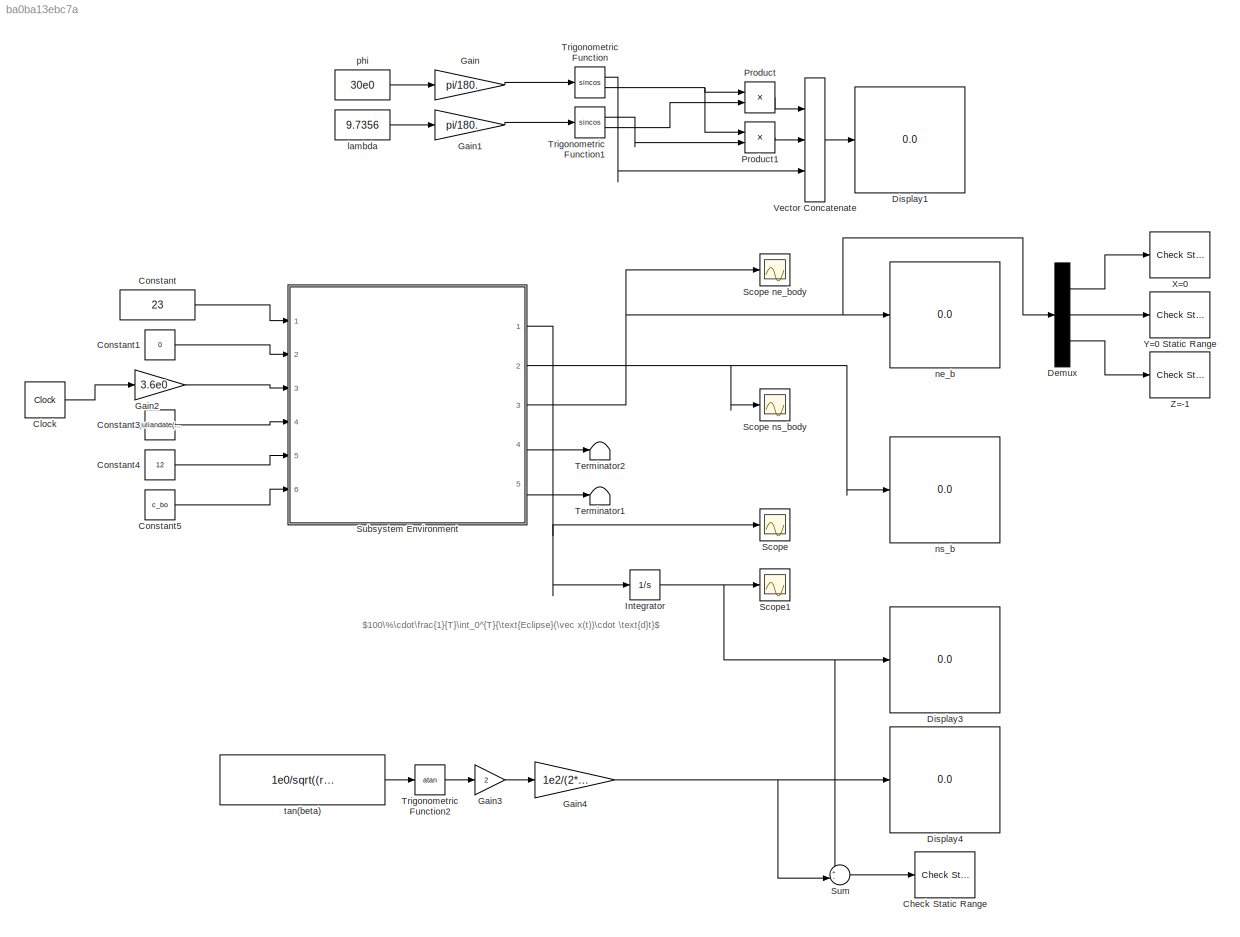
MODEL slx_ba0ba13ebc7a
KIND model
CONFIG AbsTol = auto
CONFIG EnableMultiTasking = off
CONFIG FixedStep = 1e-3
CONFIG InitFcn = data
CONFIG MaxStep = auto
CONFIG MinStep = auto
CONFIG RelTol = 1e-3
CONFIG SampleTimeConstraint = Unconstrained
CONFIG Solver = VariableStepAuto
CONFIG SolverName = VariableStepAuto
CONFIG StartTime = 0.0
CONFIG StopTime = 100.0
BLOCK [Reference] Check Static Range  REF=simulink/Model
Verification/Check 
Static Range
  Description = -1e2 <= u <= 2e0
  Ports = [1]
  SourceBlock = simulink/Model\nVerification/Check \nStatic Range
  SourceProductBaseCode = SL
  SourceProductName = Simulink
  SourceType = Checks_SRange
BLOCK [Clock] Clock
  Decimation = 100
  DisplayTime = on
BLOCK [Constant] Constant
  Value = 23
BLOCK [Constant] Constant1
  Value = 0
BLOCK [Constant] Constant3
  Value = juliandate([2018,6,1,12,0,0])
BLOCK [Constant] Constant4
  Value = 12
BLOCK [Constant] Constant5
  Value = c_bo
BLOCK [Demux] Demux
  DisplayOption = bar
  Outputs = 3
  Ports = [1, 3]
BLOCK [Display] Display1
  Commented = on
  Decimation = 1
  Ports = [1]
BLOCK [Display] Display3
  Decimation = 1
  Ports = [1]
BLOCK [Display] Display4
  Decimation = 1
  Ports = [1]
BLOCK [Gain] Gain
  Commented = on
  Gain = pi/180.
  OutDataTypeStr = Inherit: Inherit via internal rule
  ParamDataTypeStr = Inherit: Inherit via internal rule
  SaturateOnIntegerOverflow = off
BLOCK [Gain] Gain1
  Commented = on
  Gain = pi/180.
  OutDataTypeStr = Inherit: Inherit via internal rule
  ParamDataTypeStr = Inherit: Inherit via internal rule
  SaturateOnIntegerOverflow = off
BLOCK [Gain] Gain2
  Gain = 3.6e0
  OutDataTypeStr = Inherit: Inherit via internal rule
  ParamDataTypeStr = Inherit: Inherit via internal rule
  SaturateOnIntegerOverflow = off
BLOCK [Gain] Gain3
  Gain = 2
  OutDataTypeStr = Inherit: Inherit via internal rule
  ParamDataTypeStr = Inherit: Inherit via internal rule
  SaturateOnIntegerOverflow = off
BLOCK [Gain] Gain4
  Gain = 1e2/(2*pi)
  OutDataTypeStr = Inherit: Inherit via internal rule
  ParamDataTypeStr = Inherit: Inherit via internal rule
  SaturateOnIntegerOverflow = off
BLOCK [Integrator] Integrator
  InitialCondition = 0e0
  Ports = [1, 1]
BLOCK [Product] Product
  Commented = on
  InputSameDT = off
  OutDataTypeStr = Inherit: Inherit via internal rule
  Ports = [2, 1]
  RndMeth = Floor
  SaturateOnIntegerOverflow = off
BLOCK [Product] Product1
  Commented = on
  InputSameDT = off
  OutDataTypeStr = Inherit: Inherit via internal rule
  Ports = [2, 1]
  RndMeth = Floor
  SaturateOnIntegerOverflow = off
BLOCK [Scope] Scope
  Floating = off
  NumInputPorts = 1
  Ports = [1]
  ScopeSpecificationString = Simulink.scopes.TimeScopeBlockCfg('CurrentConfiguration', extmgr.ConfigurationSet(extmgr.Configuration('Core','General UI',true),extmgr.Configuration('Core','Source UI',true),extmgr.Configuration('Sources','WiredSimulink',true),extmgr.Configuration('Visuals','Time Domain',true,'SerializedDisplays',{struct('MinYLimReal','-0.125','MaxYLimReal','1.125','YLabelReal','','MinYLimMag','0.00000','MaxYLimM...<+1329ch>
BLOCK [Scope] Scope ne_body
  Floating = off
  NumInputPorts = 1
  Ports = [1]
  ScopeSpecificationString = Simulink.scopes.TimeScopeBlockCfg('CurrentConfiguration', extmgr.ConfigurationSet(extmgr.Configuration('Core','General UI',true),extmgr.Configuration('Core','Source UI',true),extmgr.Configuration('Sources','WiredSimulink',true,'DataLoggingVariableName','ScopeData3'),extmgr.Configuration('Visuals','Time Domain',true,'SerializedDisplays',{struct('MinYLimReal','-1.125','MaxYLimReal','0.125','YLabelRe...<+1597ch>
BLOCK [Scope] Scope ns_body
  Floating = off
  NumInputPorts = 1
  Ports = [1]
  ScopeSpecificationString = Simulink.scopes.TimeScopeBlockCfg('CurrentConfiguration', extmgr.ConfigurationSet(extmgr.Configuration('Core','General UI',true),extmgr.Configuration('Core','Source UI',true),extmgr.Configuration('Sources','WiredSimulink',true,'DataLoggingVariableName','ScopeData2'),extmgr.Configuration('Visuals','Time Domain',true,'SerializedDisplays',{struct('MinYLimReal','-1.0914','MaxYLimReal','1.0914','YLabel...<+1428ch>
BLOCK [Scope] Scope1
  Floating = off
  NumInputPorts = 1
  Ports = [1]
  ScopeSpecificationString = Simulink.scopes.TimeScopeBlockCfg('CurrentConfiguration', extmgr.ConfigurationSet(extmgr.Configuration('Core','General UI',true),extmgr.Configuration('Core','Source UI',true),extmgr.Configuration('Sources','WiredSimulink',true,'DataLoggingVariableName','ScopeData1'),extmgr.Configuration('Visuals','Time Domain',true,'SerializedDisplays',{struct('MinYLimReal','-0.125','MaxYLimReal','1.125','YLabelRe...<+1368ch>
BLOCK [SubSystem] Subsystem Environment
  BlockKeywords = __PRM__SERIALIZED__DATA__:SubsystemReferenceBlock
  Ports = [6, 5]
  ReferencedSubsystem = block_environment
  RequestExecContextInheritance = off
BLOCK [Sum] Sum
  IconShape = round
  InputSameDT = off
  Inputs = +-|
  OutDataTypeStr = Inherit: Inherit via internal rule
  Ports = [2, 1]
  SaturateOnIntegerOverflow = off
BLOCK [Terminator] Terminator1
BLOCK [Terminator] Terminator2
BLOCK [Trigonometry] Trigonometric Function
  Commented = on
  Operator = sincos
  Ports = [1, 2]
BLOCK [Trigonometry] Trigonometric Function1
  Commented = on
  Operator = sincos
  Ports = [1, 2]
BLOCK [Trigonometry] Trigonometric Function2
  Operator = atan
  Ports = [1, 1]
BLOCK [Concatenate] Vector Concatenate
  Commented = on
  NumInputs = 3
  Ports = [3, 1]
BLOCK [Reference] X=0  REF=simulink/Model
Verification/Check 
Static Range
  Description = 0e0 - 1e-5 <= u <= 0e0 + 1e-5
  Ports = [1]
  SourceBlock = simulink/Model\nVerification/Check \nStatic Range
  SourceProductBaseCode = SL
  SourceProductName = Simulink
  SourceType = Checks_SRange
BLOCK [Reference] Y=0 Static Range  REF=simulink/Model
Verification/Check 
Static Range
  Description = 0e0 - 1e-5 <= u <= 0e0 + 1e-5
  Ports = [1]
  SourceBlock = simulink/Model\nVerification/Check \nStatic Range
  SourceProductBaseCode = SL
  SourceProductName = Simulink
  SourceType = Checks_SRange
BLOCK [Reference] Z=-1   REF=simulink/Model
Verification/Check 
Static Range
  Description = -1e0 - 1e-5 <= u <= -1e0 + 1e-5
  Ports = [1]
  SourceBlock = simulink/Model\nVerification/Check \nStatic Range
  SourceProductBaseCode = SL
  SourceProductName = Simulink
  SourceType = Checks_SRange
BLOCK [Constant] lambda
  Commented = on
  Value = 9.7356
BLOCK [Display] ne_b
  Decimation = 1
  Ports = [1]
BLOCK [Display] ns_b
  Decimation = 1
  Ports = [1]
BLOCK [Constant] phi
  Commented = on
  Value = 30e0
BLOCK [Constant] tan(beta)
  Value = 1e0/sqrt((r/RP)*(r/RP) - 1e0)
ANNOTATION (root): $100\%\cdot\frac{1}{T}\int_0^{T}{\text{Eclipse}(\vec x(t))\cdot \text{d}t}$
LINE Clock:1 -> Gain2:1
LINE Constant1:1 -> Subsystem Environment:2
LINE Constant3:1 -> Subsystem Environment:4
LINE Constant4:1 -> Subsystem Environment:5
LINE Constant5:1 -> Subsystem Environment:6
LINE Constant:1 -> Subsystem Environment:1
LINE Demux:1 -> X=0:1
LINE Demux:2 -> Y=0 Static Range:1
LINE Demux:3 -> Z=-1 :1
LINE Gain1:1 -> Trigonometric Function1:1
LINE Gain2:1 -> Subsystem Environment:3
LINE Gain3:1 -> Gain4:1
NET Gain4:1 -> Display4:1, Sum:2
LINE Gain:1 -> Trigonometric Function:1
NET Integrator:1 -> Display3:1, Scope1:1, Sum:1
LINE Product1:1 -> Vector Concatenate:2
LINE Product:1 -> Vector Concatenate:1
NET Subsystem Environment:1 -> Integrator:1, Scope:1
NET Subsystem Environment:2 -> Scope ns_body:1, ns_b:1
NET Subsystem Environment:3 -> Demux:1, Scope ne_body:1, ne_b:1
LINE Subsystem Environment:4 -> Terminator2:1
LINE Subsystem Environment:5 -> Terminator1:1
LINE Sum:1 -> Check Static Range:1
LINE Trigonometric Function1:1 -> Product1:2
LINE Trigonometric Function1:2 -> Product:2
LINE Trigonometric Function2:1 -> Gain3:1
LINE Trigonometric Function:1 -> Vector Concatenate:3
NET Trigonometric Function:2 -> Product1:1, Product:1
LINE Vector Concatenate:1 -> Display1:1
LINE lambda:1 -> Gain1:1
LINE phi:1 -> Gain:1
LINE tan(beta):1 -> Trigonometric Function2:1
note: NET lines group one-source signal fan-out (src -> all destinations, sorted); 1:1 wires keep LINE
